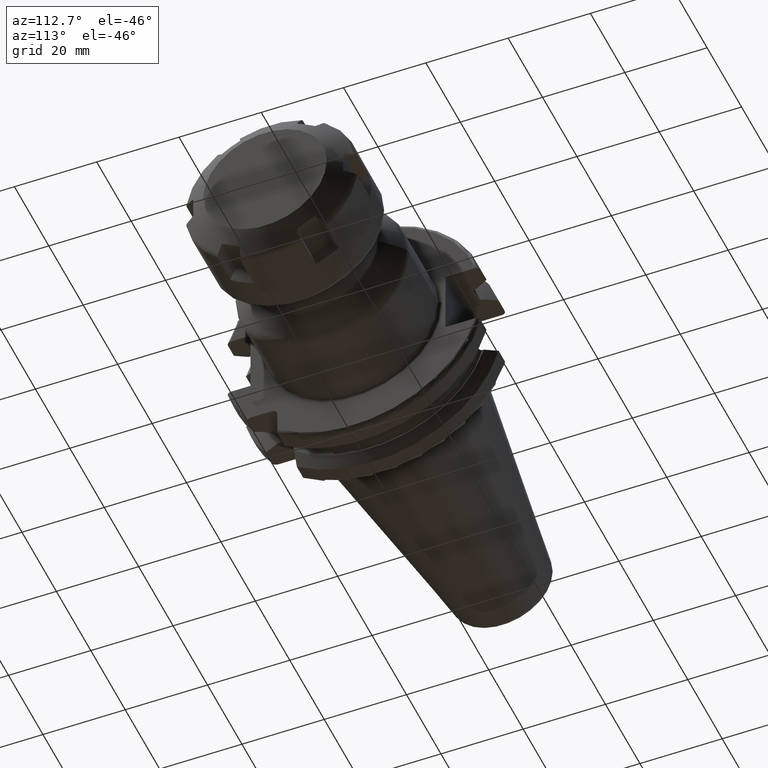
[diagram: clean part render]
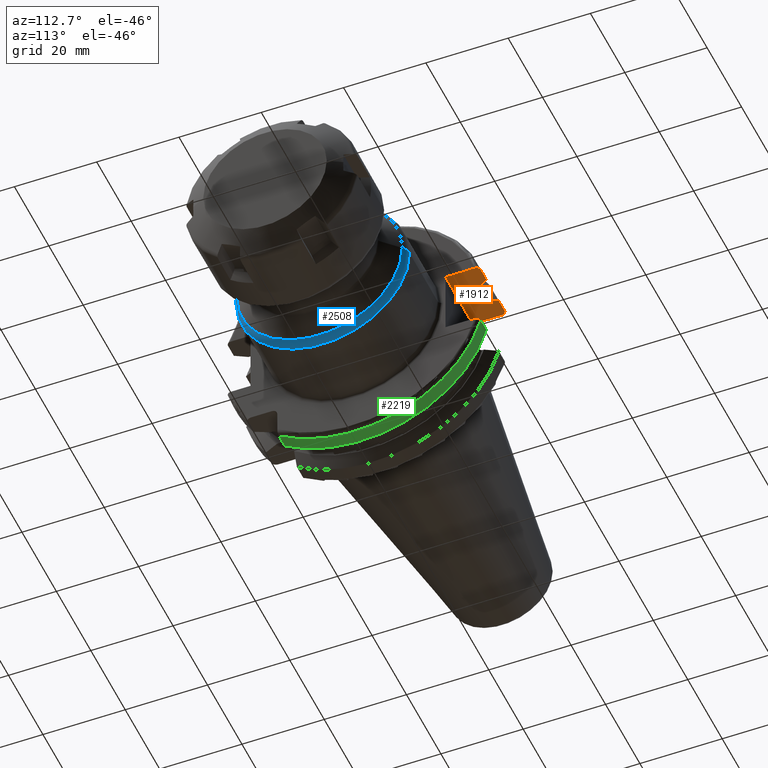
[diagram: same view with three faces highlighted in distinct colors, each labeled with its STEP entity id]
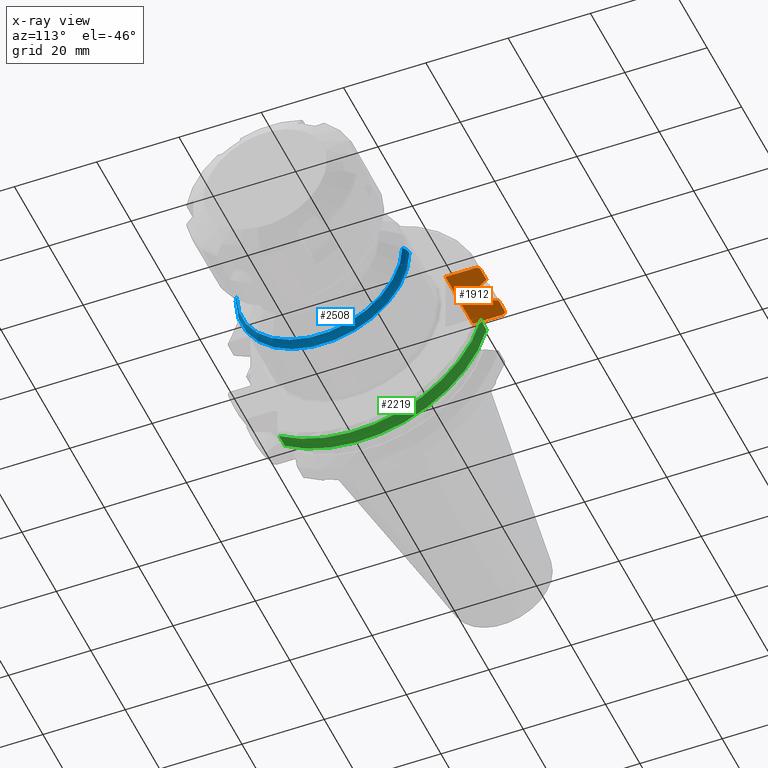
[diagram: x-ray of the same camera — body ghosted, the three highlighted faces saturated]
A machine part, auxiliary view with three faces highlighted in distinct colors.
The next image is the same camera in x-ray (body ghosted, the three faces saturated) — at least one of them is partly hidden behind the body in this view.
Their STEP definitions:

[orange] entity #1912 — the highlighted planar face has unit normal (0, 0, 1).
#122=DIRECTION('',(-1.E0,0.E0,0.E0));
#123=VECTOR('',#122,1.585E1);
#124=CARTESIAN_POINT('',(1.905E1,2.255E1,8.1E0));
#125=LINE('',#124,#123);
#146=DIRECTION('',(0.E0,-1.E0,0.E0));
#147=VECTOR('',#146,7.126950757280E0);
#148=CARTESIAN_POINT('',(1.905E1,2.967695075728E1,8.1E0));
#149=LINE('',#148,#147);
#230=DIRECTION('',(0.E0,-1.E0,1.604290981016E-14));
#231=VECTOR('',#230,2.214507044446E-1);
#232=CARTESIAN_POINT('',(9.2625E0,2.780681820245E1,8.1E0));
#233=LINE('',#232,#231);
#269=CARTESIAN_POINT('',(7.645946479578E0,3.071231684927E1,8.1E0));
#270=CARTESIAN_POINT('',(7.831754864835E0,3.037948258059E1,8.1E0));
#271=CARTESIAN_POINT('',(8.199252814970E0,2.972048825911E1,8.1E0));
#272=CARTESIAN_POINT('',(8.738047920141E0,2.875212438619E1,8.1E0));
#273=CARTESIAN_POINT('',(9.089058006747E0,2.811971443922E1,8.1E0));
#274=CARTESIAN_POINT('',(9.2625E0,2.780681820245E1,8.1E0));
#287=CARTESIAN_POINT('',(1.00125E1,2.680279836137E1,8.1E0));
#288=CARTESIAN_POINT('',(9.954414492742E0,2.680279836137E1,8.1E0));
#289=CARTESIAN_POINT('',(9.841762349365E0,2.681646236359E1,8.1E0));
#290=CARTESIAN_POINT('',(9.678987453991E0,2.687689458627E1,8.1E0));
#291=CARTESIAN_POINT('',(9.535463039595E0,2.697313680177E1,8.1E0));
#292=CARTESIAN_POINT('',(9.417373639506E0,2.709880409232E1,8.1E0));
#293=CARTESIAN_POINT('',(9.329478791834E0,2.724706101014E1,8.1E0));
#294=CARTESIAN_POINT('',(9.274990825916E0,2.741184090016E1,8.1E0));
#295=CARTESIAN_POINT('',(9.2625E0,2.752639097673E1,8.1E0));
#296=CARTESIAN_POINT('',(9.2625E0,2.758536749801E1,8.1E0));
#314=DIRECTION('',(1.E0,0.E0,0.E0));
#315=VECTOR('',#314,2.325E0);
#316=CARTESIAN_POINT('',(1.00125E1,2.680279836137E1,8.1E0));
#317=LINE('',#316,#315);
#327=CARTESIAN_POINT('',(1.30875E1,2.758536749801E1,8.1E0));
#328=CARTESIAN_POINT('',(1.30875E1,2.752620726606E1,8.1E0));
#329=CARTESIAN_POINT('',(1.307494192723E1,2.741130240577E1,8.1E0));
#330=CARTESIAN_POINT('',(1.302002181328E1,2.724583699942E1,8.1E0));
#331=CARTESIAN_POINT('',(1.293153238569E1,2.709731578992E1,8.1E0));
#332=CARTESIAN_POINT('',(1.281313013739E1,2.697197536487E1,8.1E0));
#333=CARTESIAN_POINT('',(1.266986820733E1,2.687637473050E1,8.1E0));
#334=CARTESIAN_POINT('',(1.250775986797E1,2.681639930389E1,8.1E0));
#335=CARTESIAN_POINT('',(1.239542540414E1,2.680279836137E1,8.1E0));
#336=CARTESIAN_POINT('',(1.23375E1,2.680279836137E1,8.1E0));
#354=DIRECTION('',(0.E0,-1.E0,0.E0));
#355=VECTOR('',#354,2.214507044446E-1);
#356=CARTESIAN_POINT('',(1.30875E1,2.780681820245E1,8.1E0));
#357=LINE('',#356,#355);
#393=CARTESIAN_POINT('',(1.470405352042E1,3.071231684927E1,8.1E0));
#394=CARTESIAN_POINT('',(1.451824513517E1,3.037948258059E1,8.1E0));
#395=CARTESIAN_POINT('',(1.415074718503E1,2.972048825911E1,8.1E0));
#396=CARTESIAN_POINT('',(1.361195207986E1,2.875212438619E1,8.1E0));
#397=CARTESIAN_POINT('',(1.326094199325E1,2.811971443922E1,8.1E0));
#398=CARTESIAN_POINT('',(1.30875E1,2.780681820245E1,8.1E0));
#412=DIRECTION('',(1.E0,0.E0,0.E0));
#413=VECTOR('',#412,3.445946479578E0);
#414=CARTESIAN_POINT('',(4.2E0,3.071231684927E1,8.1E0));
#415=LINE('',#414,#413);
#425=DIRECTION('',(1.E0,0.E0,0.E0));
#426=VECTOR('',#425,3.345946479578E0);
#427=CARTESIAN_POINT('',(1.470405352042E1,3.071231684927E1,8.1E0));
#428=LINE('',#427,#426);
#443=CARTESIAN_POINT('',(4.2E0,3.071231684927E1,8.1E0));
#444=CARTESIAN_POINT('',(4.122975496592E0,3.071231684927E1,8.1E0));
#445=CARTESIAN_POINT('',(3.973434275890E0,3.069445502310E1,8.1E0));
#446=CARTESIAN_POINT('',(3.757148362145E0,3.061539366421E1,8.1E0));
#447=CARTESIAN_POINT('',(3.565367695912E0,3.048860164744E1,8.1E0));
#448=CARTESIAN_POINT('',(3.407348762296E0,3.032249788839E1,8.1E0));
#449=CARTESIAN_POINT('',(3.289450816159E0,3.012561805664E1,8.1E0));
#450=CARTESIAN_POINT('',(3.216670609282E0,2.990711670215E1,8.1E0));
#451=CARTESIAN_POINT('',(3.2E0,2.975517161523E1,8.1E0));
#452=CARTESIAN_POINT('',(3.2E0,2.967695075728E1,8.1E0));
#495=DIRECTION('',(0.E0,-1.E0,0.E0));
#496=VECTOR('',#495,7.126950757280E0);
#497=CARTESIAN_POINT('',(3.2E0,2.967695075728E1,8.1E0));
#498=LINE('',#497,#496);
#871=CARTESIAN_POINT('',(1.905E1,2.967695075728E1,8.1E0));
#872=CARTESIAN_POINT('',(1.905E1,2.975534544469E1,8.1E0));
#873=CARTESIAN_POINT('',(1.903327439626E1,2.990764711142E1,8.1E0));
#874=CARTESIAN_POINT('',(1.895996891946E1,3.012703601742E1,8.1E0));
#875=CARTESIAN_POINT('',(1.884140031799E1,3.032417656220E1,8.1E0));
#876=CARTESIAN_POINT('',(1.868299781019E1,3.048994814949E1,8.1E0));
#877=CARTESIAN_POINT('',(1.849140267654E1,3.061604720054E1,8.1E0));
#878=CARTESIAN_POINT('',(1.827601722220E1,3.069451682863E1,8.1E0));
#879=CARTESIAN_POINT('',(1.812684136073E1,3.071231684927E1,8.1E0));
#880=CARTESIAN_POINT('',(1.805E1,3.071231684927E1,8.1E0));
#1336=CARTESIAN_POINT('',(9.2625E0,2.780681820245E1,8.1E0));
#1337=CARTESIAN_POINT('',(9.2625E0,2.758536749801E1,8.1E0));
#1338=VERTEX_POINT('',#1336);
#1339=VERTEX_POINT('',#1337);
#1360=VERTEX_POINT('',#287);
#1362=CARTESIAN_POINT('',(1.23375E1,2.680279836137E1,8.1E0));
#1363=VERTEX_POINT('',#1362);
#1366=VERTEX_POINT('',#327);
#1368=CARTESIAN_POINT('',(1.30875E1,2.780681820245E1,8.1E0));
#1369=VERTEX_POINT('',#1368);
#1388=VERTEX_POINT('',#393);
#1390=VERTEX_POINT('',#269);
#1402=CARTESIAN_POINT('',(1.905E1,2.967695075728E1,8.1E0));
#1403=CARTESIAN_POINT('',(1.905E1,2.255E1,8.1E0));
#1404=VERTEX_POINT('',#1402);
#1405=VERTEX_POINT('',#1403);
#1418=CARTESIAN_POINT('',(4.2E0,3.071231684927E1,8.1E0));
#1419=VERTEX_POINT('',#1418);
#1420=CARTESIAN_POINT('',(1.805E1,3.071231684927E1,8.1E0));
#1421=VERTEX_POINT('',#1420);
#1426=CARTESIAN_POINT('',(3.2E0,2.967695075728E1,8.1E0));
#1427=CARTESIAN_POINT('',(3.2E0,2.255E1,8.1E0));
#1428=VERTEX_POINT('',#1426);
#1429=VERTEX_POINT('',#1427);
#1880=CARTESIAN_POINT('',(1.905E1,3.255E1,8.1E0));
#1881=DIRECTION('',(0.E0,0.E0,1.E0));
#1882=DIRECTION('',(0.E0,-1.E0,0.E0));
#1883=AXIS2_PLACEMENT_3D('',#1880,#1881,#1882);
#1884=PLANE('',#1883);
#1885=ORIENTED_EDGE('',*,*,#1839,.F.);
#1887=ORIENTED_EDGE('',*,*,#1886,.F.);
#1889=ORIENTED_EDGE('',*,*,#1888,.F.);
#1891=ORIENTED_EDGE('',*,*,#1890,.T.);
#1893=ORIENTED_EDGE('',*,*,#1892,.T.);
#1894=ORIENTED_EDGE('',*,*,#1686,.F.);
#1895=ORIENTED_EDGE('',*,*,#1721,.F.);
#1897=ORIENTED_EDGE('',*,*,#1896,.T.);
#1899=ORIENTED_EDGE('',*,*,#1898,.F.);
#1901=ORIENTED_EDGE('',*,*,#1900,.T.);
#1903=ORIENTED_EDGE('',*,*,#1902,.T.);
#1905=ORIENTED_EDGE('',*,*,#1904,.T.);
#1907=ORIENTED_EDGE('',*,*,#1906,.F.);
#1909=ORIENTED_EDGE('',*,*,#1908,.T.);
#1910=EDGE_LOOP('',(#1885,#1887,#1889,#1891,#1893,#1894,#1895,#1897,#1899,#1901,
#1903,#1905,#1907,#1909));
#1911=FACE_OUTER_BOUND('',#1910,.F.);
#1912=ADVANCED_FACE('',(#1911),#1884,.F.);
#275=B_SPLINE_CURVE_WITH_KNOTS('',3,(#269,#270,#271,#272,#273,#274),
.UNSPECIFIED.,.F.,.F.,(4,1,1,4),(0.E0,3.333333333333E-1,6.666666666667E-1,1.E0),
.UNSPECIFIED.);
#297=B_SPLINE_CURVE_WITH_KNOTS('',3,(#287,#288,#289,#290,#291,#292,#293,#294,
#295,#296),.UNSPECIFIED.,.F.,.F.,(4,1,1,1,1,1,1,4),(0.E0,1.428571428571E-1,
2.857142857143E-1,4.285714285714E-1,5.714285714286E-1,7.142857142857E-1,
8.571428571429E-1,1.E0),.UNSPECIFIED.);
#337=B_SPLINE_CURVE_WITH_KNOTS('',3,(#327,#328,#329,#330,#331,#332,#333,#334,
#335,#336),.UNSPECIFIED.,.F.,.F.,(4,1,1,1,1,1,1,4),(0.E0,1.428571428571E-1,
2.857142857143E-1,4.285714285714E-1,5.714285714286E-1,7.142857142857E-1,
8.571428571429E-1,1.E0),.UNSPECIFIED.);
#399=B_SPLINE_CURVE_WITH_KNOTS('',3,(#393,#394,#395,#396,#397,#398),
.UNSPECIFIED.,.F.,.F.,(4,1,1,4),(0.E0,3.333333333333E-1,6.666666666667E-1,1.E0),
.UNSPECIFIED.);
#453=B_SPLINE_CURVE_WITH_KNOTS('',3,(#443,#444,#445,#446,#447,#448,#449,#450,
#451,#452),.UNSPECIFIED.,.F.,.F.,(4,1,1,1,1,1,1,4),(0.E0,1.428571428571E-1,
2.857142857143E-1,4.285714285714E-1,5.714285714286E-1,7.142857142857E-1,
8.571428571429E-1,1.E0),.UNSPECIFIED.);
#881=B_SPLINE_CURVE_WITH_KNOTS('',3,(#871,#872,#873,#874,#875,#876,#877,#878,
#879,#880),.UNSPECIFIED.,.F.,.F.,(4,1,1,1,1,1,1,4),(0.E0,1.428571428571E-1,
2.857142857143E-1,4.285714285714E-1,5.714285714286E-1,7.142857142857E-1,
8.571428571429E-1,1.E0),.UNSPECIFIED.);
#1686=EDGE_CURVE('',#1405,#1429,#125,.T.);
#1721=EDGE_CURVE('',#1404,#1405,#149,.T.);
#1839=EDGE_CURVE('',#1338,#1339,#233,.T.);
#1886=EDGE_CURVE('',#1390,#1338,#275,.T.);
#1888=EDGE_CURVE('',#1419,#1390,#415,.T.);
#1890=EDGE_CURVE('',#1419,#1428,#453,.T.);
#1892=EDGE_CURVE('',#1428,#1429,#498,.T.);
#1896=EDGE_CURVE('',#1404,#1421,#881,.T.);
#1898=EDGE_CURVE('',#1388,#1421,#428,.T.);
#1900=EDGE_CURVE('',#1388,#1369,#399,.T.);
#1902=EDGE_CURVE('',#1369,#1366,#357,.T.);
#1904=EDGE_CURVE('',#1366,#1363,#337,.T.);
#1906=EDGE_CURVE('',#1360,#1363,#317,.T.);
#1908=EDGE_CURVE('',#1360,#1339,#297,.T.);

[blue] entity #2508 — the highlighted toroidal blend (fillet) surface has major radius 18 mm and minor (blend) radius 3 mm.
#918=CARTESIAN_POINT('',(3.625735931288E1,-1.8E1,-3.578592977505E-11));
#919=DIRECTION('',(0.E0,-1.988108462581E-12,1.E0));
#920=DIRECTION('',(1.894780628694E-14,-1.E0,-1.988108462581E-12));
#921=AXIS2_PLACEMENT_3D('',#918,#919,#920);
#923=CARTESIAN_POINT('',(3.625735931288E1,1.8E1,3.578953799988E-11));
#924=DIRECTION('',(0.E0,1.988308823142E-12,-1.E0));
#925=DIRECTION('',(2.131628207280E-14,1.E0,1.988308823142E-12));
#926=AXIS2_PLACEMENT_3D('',#923,#924,#925);
#928=CARTESIAN_POINT('',(3.625735931288E1,0.E0,0.E0));
#929=DIRECTION('',(-1.E0,0.E0,0.E0));
#930=DIRECTION('',(0.E0,1.E0,0.E0));
#931=AXIS2_PLACEMENT_3D('',#928,#929,#930);
#946=CARTESIAN_POINT('',(3.837867965644E1,0.E0,0.E0));
#947=DIRECTION('',(-1.E0,0.E0,0.E0));
#948=DIRECTION('',(0.E0,1.E0,0.E0));
#949=AXIS2_PLACEMENT_3D('',#946,#947,#948);
#1491=CARTESIAN_POINT('',(3.625735931288E1,2.1E1,0.E0));
#1492=CARTESIAN_POINT('',(3.625735931288E1,-2.1E1,0.E0));
#1493=VERTEX_POINT('',#1491);
#1494=VERTEX_POINT('',#1492);
#1495=CARTESIAN_POINT('',(3.837867965644E1,2.012132034356E1,0.E0));
#1496=CARTESIAN_POINT('',(3.837867965644E1,-2.012132034356E1,0.E0));
#1497=VERTEX_POINT('',#1495);
#1498=VERTEX_POINT('',#1496);
#2495=CARTESIAN_POINT('',(3.625735931288E1,0.E0,0.E0));
#2496=DIRECTION('',(1.E0,0.E0,0.E0));
#2497=DIRECTION('',(0.E0,9.999752152794E-1,7.040513262277E-3));
#2498=AXIS2_PLACEMENT_3D('',#2495,#2496,#2497);
#2499=TOROIDAL_SURFACE('',#2498,1.8E1,3.E0);
#2501=ORIENTED_EDGE('',*,*,#2500,.T.);
#2502=ORIENTED_EDGE('',*,*,#2490,.T.);
#2504=ORIENTED_EDGE('',*,*,#2503,.F.);
#2505=ORIENTED_EDGE('',*,*,#2486,.F.);
#2506=EDGE_LOOP('',(#2501,#2502,#2504,#2505));
#2507=FACE_OUTER_BOUND('',#2506,.F.);
#2508=ADVANCED_FACE('',(#2507),#2499,.T.);
#922=CIRCLE('',#921,3.E0);
#927=CIRCLE('',#926,3.E0);
#932=CIRCLE('',#931,2.1E1);
#950=CIRCLE('',#949,2.012132034356E1);
#2486=EDGE_CURVE('',#1493,#1497,#927,.T.);
#2490=EDGE_CURVE('',#1494,#1498,#922,.T.);
#2500=EDGE_CURVE('',#1493,#1494,#932,.T.);
#2503=EDGE_CURVE('',#1497,#1498,#950,.T.);

[green] entity #2219 — the highlighted cylindrical surface (partial cylindrical patch) has radius 31.7625 mm, axis along (1, 0, 0).
#602=DIRECTION('',(1.E0,0.E0,0.E0));
#603=VECTOR('',#602,3.345946479578E0);
#604=CARTESIAN_POINT('',(1.470405352042E1,3.071231684927E1,-8.1E0));
#605=LINE('',#604,#603);
#606=CARTESIAN_POINT('',(1.470405352042E1,0.E0,0.E0));
#607=DIRECTION('',(1.E0,0.E0,0.E0));
#608=DIRECTION('',(0.E0,-5.777253049980E-1,-8.162312613254E-1));
#609=AXIS2_PLACEMENT_3D('',#606,#607,#608);
#611=DIRECTION('',(1.E0,0.E0,0.E0));
#612=VECTOR('',#611,3.345946479578E0);
#613=CARTESIAN_POINT('',(1.470405352042E1,-1.835E1,-2.592554543785E1));
#614=LINE('',#613,#612);
#615=CARTESIAN_POINT('',(1.805E1,0.E0,0.E0));
#616=DIRECTION('',(-1.E0,0.E0,0.E0));
#617=DIRECTION('',(0.E0,9.669363825036E-1,-2.550177095632E-1));
#618=AXIS2_PLACEMENT_3D('',#615,#616,#617);
#688=CARTESIAN_POINT('',(1.470405352042E1,3.071231684927E1,-8.1E0));
#700=CARTESIAN_POINT('',(1.470405352042E1,-1.835E1,-2.592554543785E1));
#1398=VERTEX_POINT('',#688);
#1448=CARTESIAN_POINT('',(1.805E1,3.071231684927E1,-8.1E0));
#1449=VERTEX_POINT('',#1448);
#1465=CARTESIAN_POINT('',(1.805E1,-1.835E1,-2.592554543785E1));
#1466=VERTEX_POINT('',#1465);
#1502=VERTEX_POINT('',#700);
#2207=CARTESIAN_POINT('',(-7.2615E1,0.E0,0.E0));
#2208=DIRECTION('',(1.E0,0.E0,0.E0));
#2209=DIRECTION('',(0.E0,-1.E0,0.E0));
#2210=AXIS2_PLACEMENT_3D('',#2207,#2208,#2209);
#2211=CYLINDRICAL_SURFACE('',#2210,3.17625E1);
#2212=ORIENTED_EDGE('',*,*,#1818,.F.);
#2214=ORIENTED_EDGE('',*,*,#2213,.F.);
#2215=ORIENTED_EDGE('',*,*,#1745,.T.);
#2216=ORIENTED_EDGE('',*,*,#1779,.F.);
#2217=EDGE_LOOP('',(#2212,#2214,#2215,#2216));
#2218=FACE_OUTER_BOUND('',#2217,.F.);
#2219=ADVANCED_FACE('',(#2218),#2211,.T.);
#610=CIRCLE('',#609,3.17625E1);
#619=CIRCLE('',#618,3.17625E1);
#1745=EDGE_CURVE('',#1502,#1466,#614,.T.);
#1779=EDGE_CURVE('',#1449,#1466,#619,.T.);
#1818=EDGE_CURVE('',#1398,#1449,#605,.T.);
#2213=EDGE_CURVE('',#1502,#1398,#610,.T.);